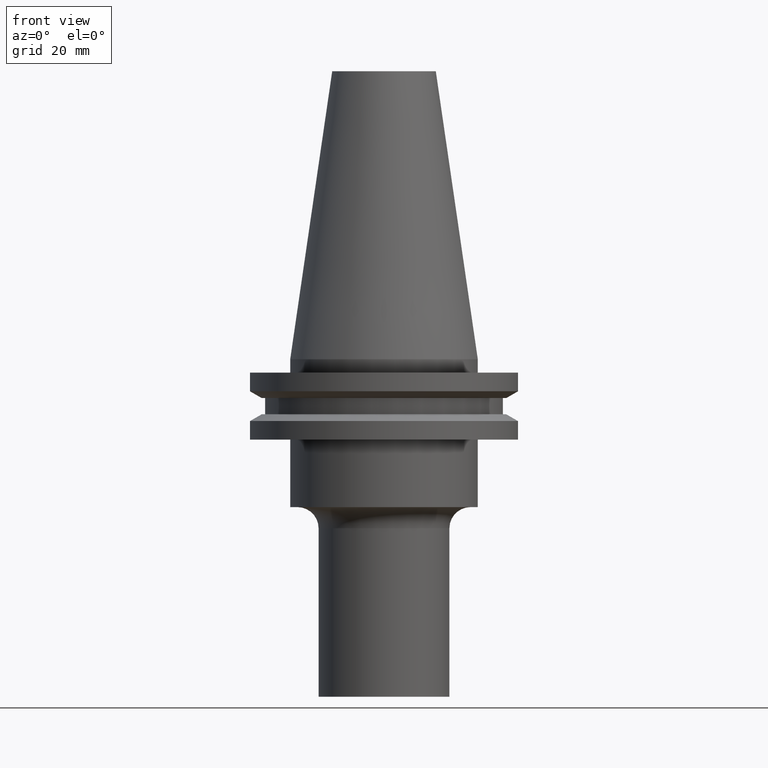
[diagram: clean part render]
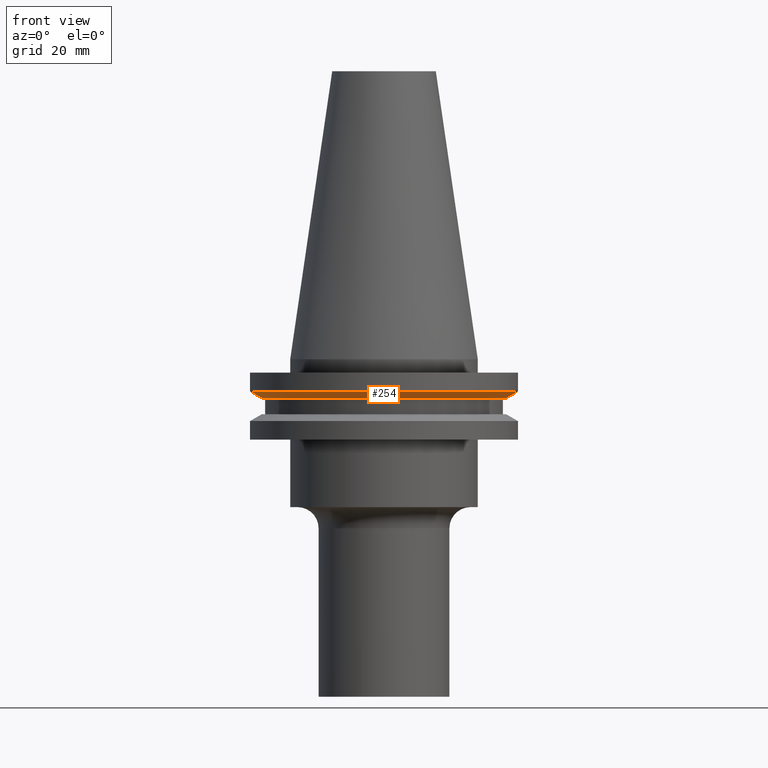
[diagram: same view with one face highlighted and labeled with its STEP entity id]
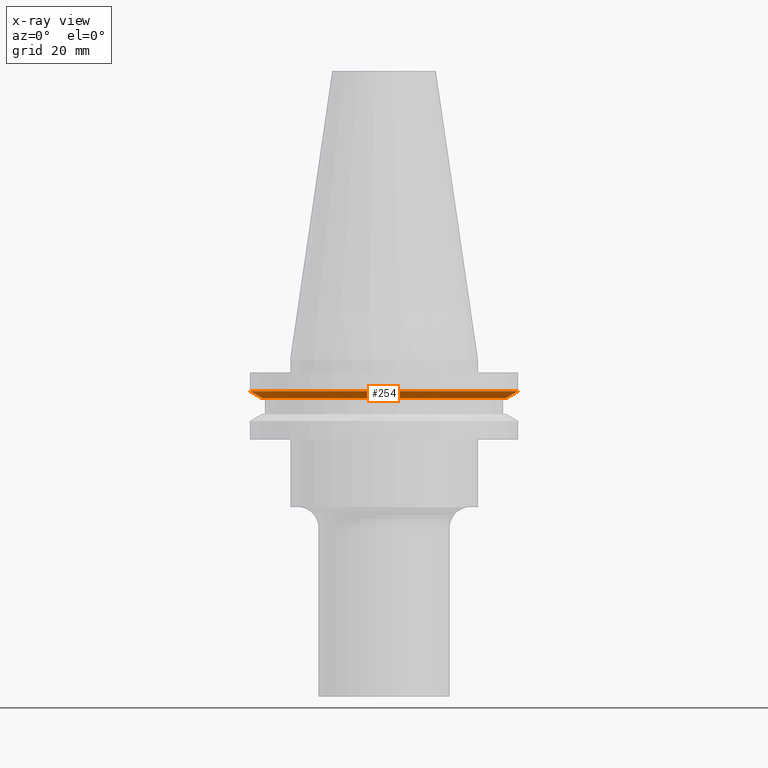
[diagram: x-ray of the same camera — body ghosted, the highlighted face saturated]
A machine part, front view. The second image highlights one B-rep face of the part: STEP entity #254.
The next image is the same camera in x-ray: the body ghosted, the highlighted face saturated — about 0% of this face is hidden behind the body in this view.
In plain terms, the highlighted conical surface has half-angle 60 deg.
Its self-contained STEP definition (entity closure, byte-faithful):
#16 = VECTOR ( 'NONE', #442, 1000.000000000000000 ) ;
#28 = DIRECTION ( 'NONE',  ( -0.000000000000000000, -0.000000000000000000, 1.000000000000000000 ) ) ;
#46 = DIRECTION ( 'NONE',  ( 1.000000000000000000, 0.000000000000000000, 0.000000000000000000 ) ) ;
#75 = DIRECTION ( 'NONE',  ( 1.000000000000000000, 0.000000000000000000, 0.000000000000000000 ) ) ;
#77 = CONICAL_SURFACE ( 'NONE', #184, 28.97919780457007732, 1.047197551196598297 ) ;
#81 = EDGE_CURVE ( 'NONE', #119, #531, #608, .T. ) ;
#119 = VERTEX_POINT ( 'NONE', #628 ) ;
#133 = CARTESIAN_POINT ( 'NONE',  ( -31.75000000000000000, 3.888253587292846476E-15, -7.605276606597335842 ) ) ;
#184 = AXIS2_PLACEMENT_3D ( 'NONE', #514, #673, #75 ) ;
#200 = FACE_OUTER_BOUND ( 'NONE', #408, .T. ) ;
#204 = LINE ( 'NONE', #271, #16 ) ;
#205 = CARTESIAN_POINT ( 'NONE',  ( 31.75000000000000000, 0.000000000000000000, -7.605276606597335842 ) ) ;
#215 = DIRECTION ( 'NONE',  ( -0.8660254037844389297, 1.060575238724907285E-16, 0.4999999999999995004 ) ) ;
#221 = VECTOR ( 'NONE', #215, 1000.000000000000000 ) ;
#254 = ADVANCED_FACE ( 'NONE', ( #200 ), #77, .T. ) ;
#257 = CARTESIAN_POINT ( 'NONE',  ( -28.97919780457007732, 3.548928183322474856E-15, -9.205000000000005400 ) ) ;
#271 = CARTESIAN_POINT ( 'NONE',  ( 28.97919780457007732, 0.000000000000000000, -9.205000000000005400 ) ) ;
#295 = CARTESIAN_POINT ( 'NONE',  ( 0.000000000000000000, 0.000000000000000000, -9.205000000000005400 ) ) ;
#325 = EDGE_CURVE ( 'NONE', #119, #759, #679, .T. ) ;
#398 = VERTEX_POINT ( 'NONE', #205 ) ;
#408 = EDGE_LOOP ( 'NONE', ( #685, #479, #592, #540 ) ) ;
#442 = DIRECTION ( 'NONE',  ( 0.8660254037844389297, 0.000000000000000000, 0.4999999999999995004 ) ) ;
#479 = ORIENTED_EDGE ( 'NONE', *, *, #325, .T. ) ;
#488 = CIRCLE ( 'NONE', #583, 31.75000000000000000 ) ;
#514 = CARTESIAN_POINT ( 'NONE',  ( 0.000000000000000000, 0.000000000000000000, -9.205000000000005400 ) ) ;
#531 = VERTEX_POINT ( 'NONE', #133 ) ;
#540 = ORIENTED_EDGE ( 'NONE', *, *, #604, .F. ) ;
#545 = CARTESIAN_POINT ( 'NONE',  ( 0.000000000000000000, 0.000000000000000000, -7.605276606597335842 ) ) ;
#565 = DIRECTION ( 'NONE',  ( 1.000000000000000000, 0.000000000000000000, 0.000000000000000000 ) ) ;
#583 = AXIS2_PLACEMENT_3D ( 'NONE', #545, #28, #565 ) ;
#592 = ORIENTED_EDGE ( 'NONE', *, *, #710, .T. ) ;
#604 = EDGE_CURVE ( 'NONE', #531, #398, #488, .T. ) ;
#608 = LINE ( 'NONE', #257, #221 ) ;
#628 = CARTESIAN_POINT ( 'NONE',  ( -28.97919780457007732, 3.718590885307660666E-15, -9.205000000000005400 ) ) ;
#673 = DIRECTION ( 'NONE',  ( -0.000000000000000000, -0.000000000000000000, 1.000000000000000000 ) ) ;
#679 = CIRCLE ( 'NONE', #716, 28.97919780457007732 ) ;
#685 = ORIENTED_EDGE ( 'NONE', *, *, #81, .F. ) ;
#710 = EDGE_CURVE ( 'NONE', #759, #398, #204, .T. ) ;
#716 = AXIS2_PLACEMENT_3D ( 'NONE', #295, #773, #46 ) ;
#727 = CARTESIAN_POINT ( 'NONE',  ( 28.97919780457007732, 0.000000000000000000, -9.205000000000005400 ) ) ;
#759 = VERTEX_POINT ( 'NONE', #727 ) ;
#773 = DIRECTION ( 'NONE',  ( -0.000000000000000000, -0.000000000000000000, 1.000000000000000000 ) ) ;